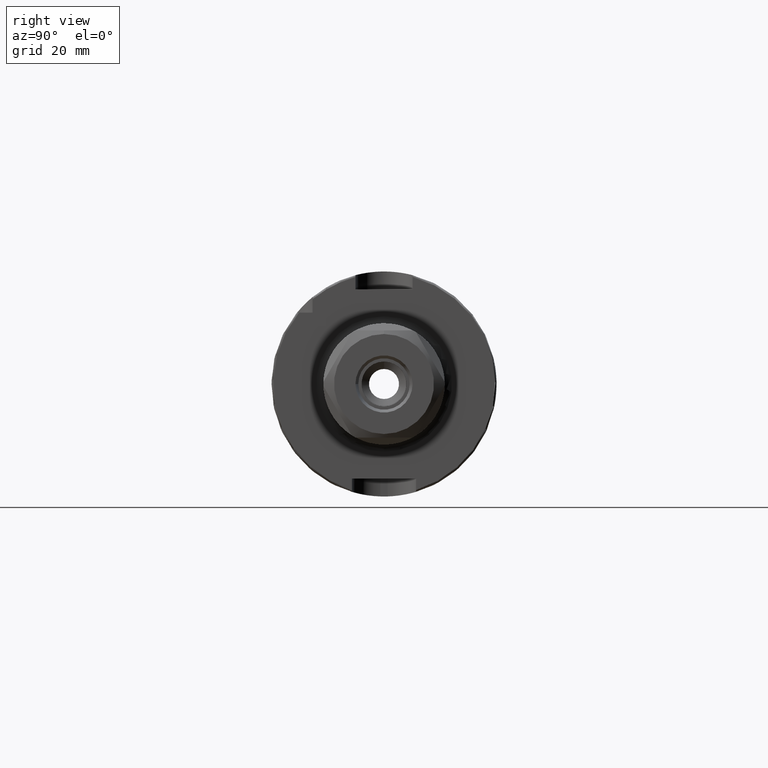
[diagram: clean part render]
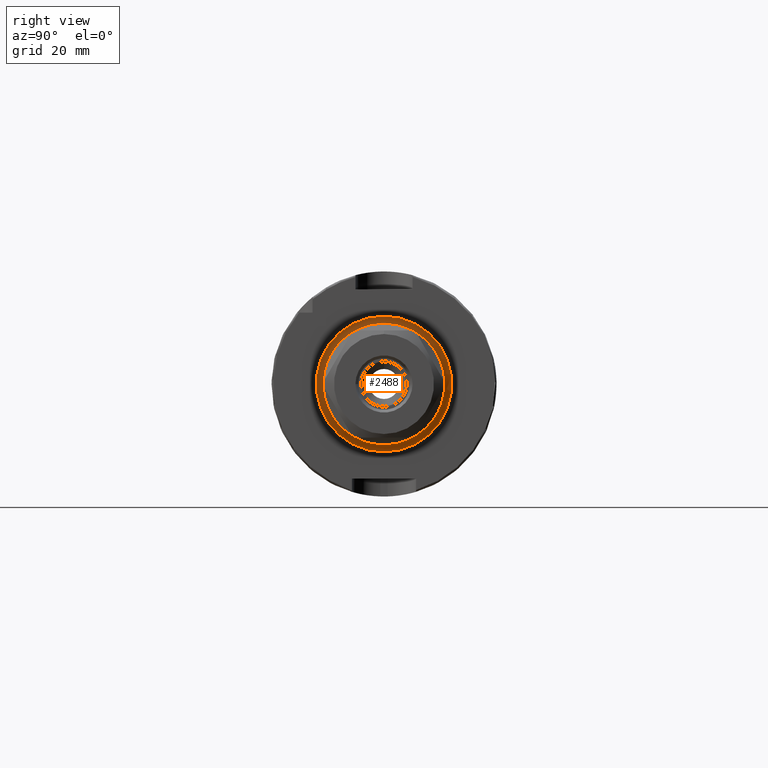
[diagram: same view with one face highlighted and labeled with its STEP entity id]
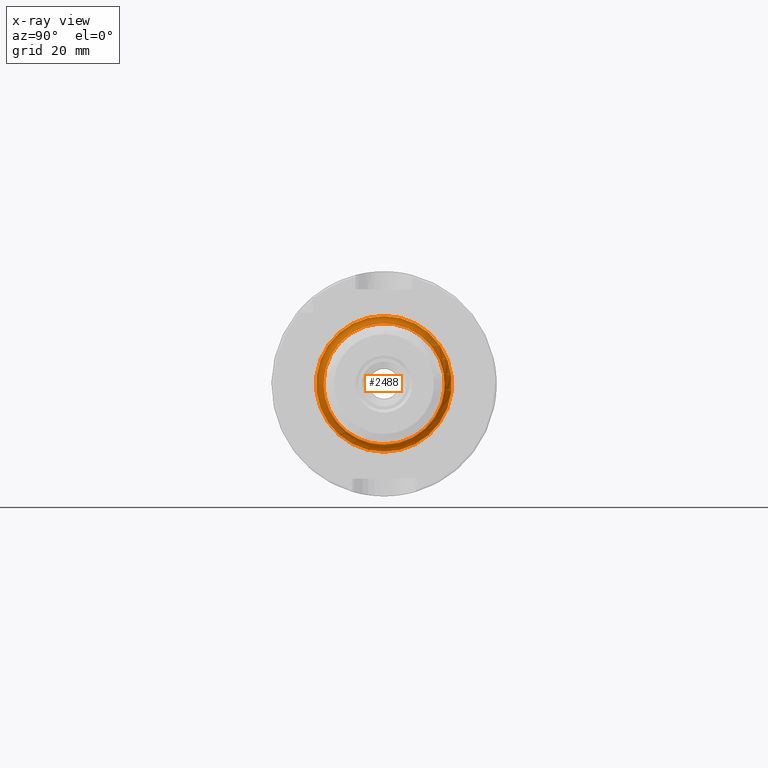
[diagram: x-ray of the same camera — body ghosted, the highlighted face saturated]
A machine part, right view. The second image highlights one B-rep face of the part: STEP entity #2488.
The next image is the same camera in x-ray: the body ghosted, the highlighted face saturated — about 3% of this face is hidden behind the body in this view.
In plain terms, the highlighted toroidal blend (fillet) surface has major radius 19 mm and minor (blend) radius 2 mm.
Its self-contained STEP definition (entity closure, byte-faithful):
#159=TOROIDAL_SURFACE('',#2731,19.,2.);
#291=FACE_OUTER_BOUND('',#442,.T.);
#442=EDGE_LOOP('',(#1710,#1711,#1712,#1713,#1714));
#885=CIRCLE('',#2727,17.);
#886=CIRCLE('',#2728,17.);
#888=CIRCLE('',#2732,2.);
#889=CIRCLE('',#2733,19.);
#1041=VERTEX_POINT('',#3855);
#1042=VERTEX_POINT('',#3857);
#1043=VERTEX_POINT('',#3863);
#1300=EDGE_CURVE('',#1042,#1041,#885,.T.);
#1301=EDGE_CURVE('',#1041,#1042,#886,.T.);
#1303=EDGE_CURVE('',#1042,#1043,#888,.T.);
#1304=EDGE_CURVE('',#1043,#1043,#889,.T.);
#1710=ORIENTED_EDGE('',*,*,#1301,.T.);
#1711=ORIENTED_EDGE('',*,*,#1303,.T.);
#1712=ORIENTED_EDGE('',*,*,#1304,.T.);
#1713=ORIENTED_EDGE('',*,*,#1303,.F.);
#1714=ORIENTED_EDGE('',*,*,#1300,.T.);
#2488=ADVANCED_FACE('',(#291),#159,.F.);
#2727=AXIS2_PLACEMENT_3D('',#3858,#3084,#3085);
#2728=AXIS2_PLACEMENT_3D('',#3859,#3086,#3087);
#2731=AXIS2_PLACEMENT_3D('',#3862,#3092,#3093);
#2732=AXIS2_PLACEMENT_3D('',#3864,#3094,#3095);
#2733=AXIS2_PLACEMENT_3D('',#3865,#3096,#3097);
#3084=DIRECTION('center_axis',(-1.,0.,0.));
#3085=DIRECTION('ref_axis',(0.,-1.,-1.22464679914735E-16));
#3086=DIRECTION('center_axis',(-1.,0.,0.));
#3087=DIRECTION('ref_axis',(0.,-1.,-1.22464679914735E-16));
#3092=DIRECTION('center_axis',(-1.,0.,0.));
#3093=DIRECTION('ref_axis',(0.,0.,1.));
#3094=DIRECTION('center_axis',(0.,-1.,1.22464679914735E-16));
#3095=DIRECTION('ref_axis',(0.,-1.22464679914735E-16,-1.));
#3096=DIRECTION('center_axis',(1.,0.,0.));
#3097=DIRECTION('ref_axis',(0.,-1.,-1.22464679914735E-16));
#3855=CARTESIAN_POINT('',(28.,-17.,-2.0818995585505E-15));
#3857=CARTESIAN_POINT('',(28.,-2.0818995585505E-15,-17.));
#3858=CARTESIAN_POINT('Origin',(28.,0.,0.));
#3859=CARTESIAN_POINT('Origin',(28.,0.,0.));
#3862=CARTESIAN_POINT('Origin',(28.,0.,0.));
#3863=CARTESIAN_POINT('',(26.,-2.32682891837997E-15,-19.));
#3864=CARTESIAN_POINT('Origin',(28.,-2.32682891837997E-15,-19.));
#3865=CARTESIAN_POINT('Origin',(26.,0.,0.));